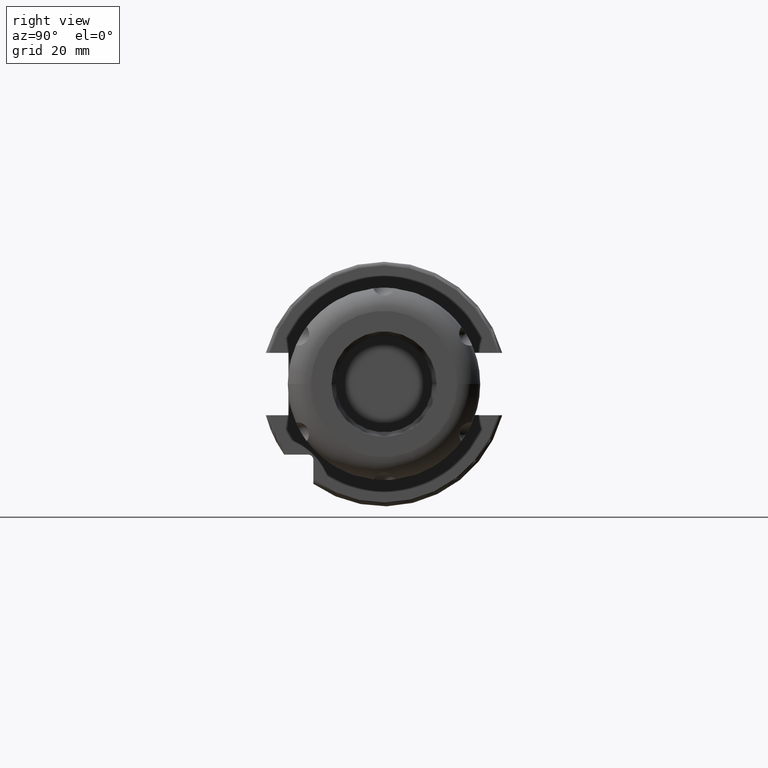
[diagram: clean part render]
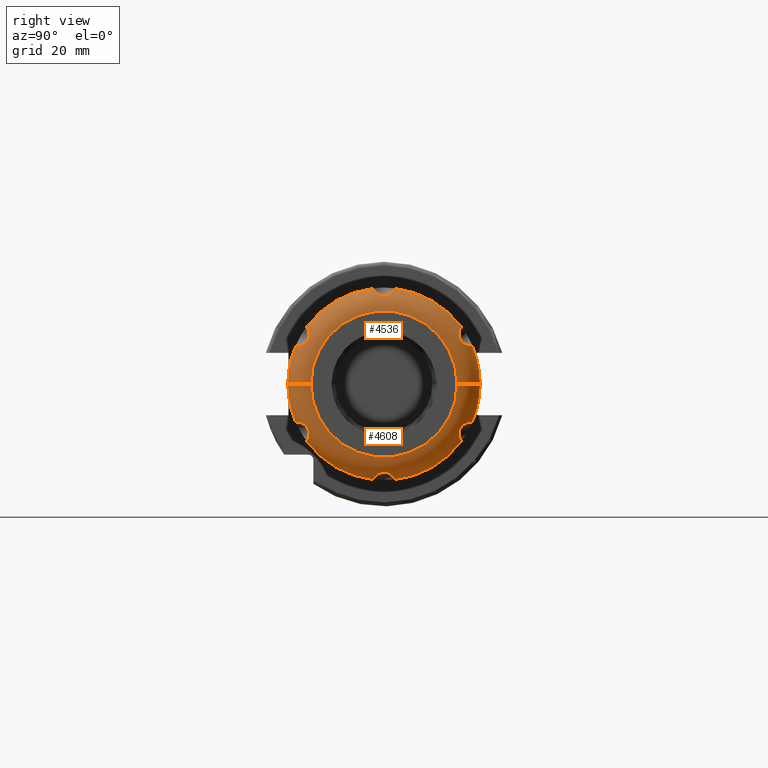
[diagram: same view with one multi-face feature highlighted, each face labeled with its STEP entity id]
A machine part, right view. The highlighted faces form ONE feature: a constant-radius fillet chain: 2 tangent blend faces with common blend radius 6 mm. The faces share edges in the B-rep.
Their STEP definitions:
[1] entity #4608 (Torus):
#3358=CARTESIAN_POINT('',(1.65E1,1.9E1,0.E0));
#3359=DIRECTION('',(0.E0,0.E0,1.E0));
#3360=DIRECTION('',(1.E0,0.E0,0.E0));
#3361=AXIS2_PLACEMENT_3D('',#3358,#3359,#3360);
#3368=CARTESIAN_POINT('',(1.65E1,-1.9E1,0.E0));
#3369=DIRECTION('',(0.E0,0.E0,-1.E0));
#3370=DIRECTION('',(1.E0,0.E0,0.E0));
#3371=AXIS2_PLACEMENT_3D('',#3368,#3369,#3370);
#3465=CARTESIAN_POINT('',(2.25E1,0.E0,0.E0));
#3466=DIRECTION('',(-1.E0,0.E0,0.E0));
#3467=DIRECTION('',(0.E0,1.E0,0.E0));
#3468=AXIS2_PLACEMENT_3D('',#3465,#3466,#3467);
#3470=CARTESIAN_POINT('',(1.65E1,-2.290985507097E1,-1.000692463383E1));
#3471=CARTESIAN_POINT('',(1.694723275951E1,-2.290985507097E1,
-1.000692463383E1));
#3472=CARTESIAN_POINT('',(1.777273686532E1,-2.280971519412E1,
-9.990413347569E0));
#3473=CARTESIAN_POINT('',(1.880906674721E1,-2.245689672418E1,
-9.964959800532E0));
#3474=CARTESIAN_POINT('',(1.963305973257E1,-2.197150264562E1,
-1.000123426491E1));
#3475=CARTESIAN_POINT('',(2.024791780451E1,-2.142093508083E1,
-1.014493191317E1));
#3476=CARTESIAN_POINT('',(2.066023413901E1,-2.088267487226E1,
-1.040837966879E1));
#3477=CARTESIAN_POINT('',(2.090398272661E1,-2.041467150765E1,
-1.076644635425E1));
#3478=CARTESIAN_POINT('',(2.102168107365E1,-2.001959095990E1,
-1.121448387238E1));
#3479=CARTESIAN_POINT('',(2.102095170479E1,-1.971884963615E1,
-1.173687630992E1));
#3480=CARTESIAN_POINT('',(2.090187643971E1,-1.952968219076E1,
-1.230343942106E1));
#3481=CARTESIAN_POINT('',(2.065580889336E1,-1.945504186870E1,
-1.288887827158E1));
#3482=CARTESIAN_POINT('',(2.024233450265E1,-1.949742910517E1,
-1.348469612162E1));
#3483=CARTESIAN_POINT('',(1.962716159831E1,-1.964864834024E1,
-1.403114251544E1));
#3484=CARTESIAN_POINT('',(1.880413136422E1,-1.985945595620E1,
-1.446749790272E1));
#3485=CARTESIAN_POINT('',(1.776997637896E1,-2.005709122247E1,
-1.475891696091E1));
#3486=CARTESIAN_POINT('',(1.694623232374E1,-2.012117848214E1,
-1.483705417156E1));
#3487=CARTESIAN_POINT('',(1.65E1,-2.012117848214E1,-1.483705417156E1));
#3497=CARTESIAN_POINT('',(1.65E1,0.E0,0.E0));
#3498=DIRECTION('',(-1.E0,0.E0,0.E0));
#3499=DIRECTION('',(0.E0,-1.115470635532E-1,-9.937591522158E-1));
#3500=AXIS2_PLACEMENT_3D('',#3497,#3498,#3499);
#3510=CARTESIAN_POINT('',(1.65E1,0.E0,0.E0));
#3511=DIRECTION('',(-1.E0,0.E0,0.E0));
#3512=DIRECTION('',(0.E0,8.048471392856E-1,-5.934821668625E-1));
#3513=AXIS2_PLACEMENT_3D('',#3510,#3511,#3512);
#3523=CARTESIAN_POINT('',(1.65E1,0.E0,0.E0));
#3524=DIRECTION('',(-1.E0,0.E0,0.E0));
#3525=DIRECTION('',(0.E0,1.E0,0.E0));
#3526=AXIS2_PLACEMENT_3D('',#3523,#3524,#3525);
#3528=CARTESIAN_POINT('',(1.65E1,0.E0,0.E0));
#3529=DIRECTION('',(-1.E0,0.E0,0.E0));
#3530=DIRECTION('',(0.E0,-9.163942028388E-1,-4.002769853533E-1));
#3531=AXIS2_PLACEMENT_3D('',#3528,#3529,#3530);
#3560=CARTESIAN_POINT('',(1.65E1,-2.788676588829E0,-2.484397880539E1));
#3561=CARTESIAN_POINT('',(1.694694754131E1,-2.788676588829E0,
-2.484397880539E1));
#3562=CARTESIAN_POINT('',(1.777198007116E1,-2.752943205589E0,
-2.474911021453E1));
#3563=CARTESIAN_POINT('',(1.880771896592E1,-2.598811539784E0,
-2.443123011097E1));
#3564=CARTESIAN_POINT('',(1.963176734723E1,-2.325018135834E0,
-2.402923896364E1));
#3565=CARTESIAN_POINT('',(2.024696892663E1,-1.925560273791E0,
-2.362424975475E1));
#3566=CARTESIAN_POINT('',(2.065976563048E1,-1.428231673506E0,
-2.328953614277E1));
#3567=CARTESIAN_POINT('',(2.090378550494E1,-8.839996782707E-1,
-2.306304098867E1));
#3568=CARTESIAN_POINT('',(2.102164431311E1,-2.982640542416E-1,
-2.294475429858E1));
#3569=CARTESIAN_POINT('',(2.102100109149E1,3.046780383890E-1,
-2.294541333181E1));
#3570=CARTESIAN_POINT('',(2.090191025403E1,8.901354013608E-1,
-2.306488534693E1));
#3571=CARTESIAN_POINT('',(2.065592748228E1,1.434427559113E0,-2.329290182320E1));
#3572=CARTESIAN_POINT('',(2.024207145380E1,1.929692523839E0,-2.362783432082E1));
#3573=CARTESIAN_POINT('',(1.962632472305E1,2.327415036802E0,-2.403230056670E1));
#3574=CARTESIAN_POINT('',(1.880301628675E1,2.599720971572E0,-2.443296598778E1));
#3575=CARTESIAN_POINT('',(1.776936990180E1,2.753079224328E0,-2.474949496109E1));
#3576=CARTESIAN_POINT('',(1.694599708003E1,2.788676588829E0,-2.484397880539E1));
#3577=CARTESIAN_POINT('',(1.65E1,2.788676588829E0,-2.484397880539E1));
#3606=CARTESIAN_POINT('',(1.65E1,2.012117848214E1,-1.483705417156E1));
#3607=CARTESIAN_POINT('',(1.694708856491E1,2.012117848214E1,-1.483705417156E1));
#3608=CARTESIAN_POINT('',(1.777236287507E1,2.005685110167E1,-1.475863577517E1));
#3609=CARTESIAN_POINT('',(1.880853425709E1,1.985847743238E1,-1.446595958018E1));
#3610=CARTESIAN_POINT('',(1.963251451616E1,1.964722137305E1,-1.402762578400E1));
#3611=CARTESIAN_POINT('',(2.024747710348E1,1.949632115603E1,-1.347912009229E1));
#3612=CARTESIAN_POINT('',(2.066003894181E1,1.945524023858E1,-1.288111988149E1));
#3613=CARTESIAN_POINT('',(2.090387423337E1,1.953126705805E1,-1.229675839468E1));
#3614=CARTESIAN_POINT('',(2.102165433062E1,1.972169964466E1,-1.173050220689E1));
#3615=CARTESIAN_POINT('',(2.102098683850E1,2.002367806744E1,-1.120882785331E1));
#3616=CARTESIAN_POINT('',(2.090193711942E1,2.041975743808E1,-1.076165852656E1));
#3617=CARTESIAN_POINT('',(2.065607652062E1,2.088920438665E1,-1.040436975402E1));
#3618=CARTESIAN_POINT('',(2.024242898343E1,2.142675562221E1,-1.014290308878E1));
#3619=CARTESIAN_POINT('',(1.962683553388E1,2.197591842393E1,-1.000060537989E1));
#3620=CARTESIAN_POINT('',(1.880356314615E1,2.245919882776E1,-9.965050715289E0));
#3621=CARTESIAN_POINT('',(1.776963548014E1,2.281019487193E1,-9.990502811027E0));
#3622=CARTESIAN_POINT('',(1.694609518650E1,2.290985507097E1,-1.000692463383E1));
#3623=CARTESIAN_POINT('',(1.65E1,2.290985507097E1,-1.000692463383E1));
#4247=CARTESIAN_POINT('',(2.25E1,1.9E1,0.E0));
#4248=CARTESIAN_POINT('',(1.65E1,2.5E1,0.E0));
#4249=VERTEX_POINT('',#4247);
#4250=VERTEX_POINT('',#4248);
#4257=CARTESIAN_POINT('',(2.25E1,-1.9E1,0.E0));
#4258=CARTESIAN_POINT('',(1.65E1,-2.5E1,0.E0));
#4259=VERTEX_POINT('',#4257);
#4260=VERTEX_POINT('',#4258);
#4261=CARTESIAN_POINT('',(1.65E1,-2.788676588829E0,-2.484397880539E1));
#4263=VERTEX_POINT('',#4261);
#4265=CARTESIAN_POINT('',(1.65E1,2.788676588829E0,-2.484397880539E1));
#4267=VERTEX_POINT('',#4265);
#4269=CARTESIAN_POINT('',(1.65E1,2.012117848214E1,-1.483705417156E1));
#4271=VERTEX_POINT('',#4269);
#4273=CARTESIAN_POINT('',(1.65E1,2.290985507097E1,-1.000692463383E1));
#4275=VERTEX_POINT('',#4273);
#4301=CARTESIAN_POINT('',(1.65E1,-2.290985507097E1,-1.000692463383E1));
#4303=VERTEX_POINT('',#4301);
#4305=CARTESIAN_POINT('',(1.65E1,-2.012117848214E1,-1.483705417156E1));
#4307=VERTEX_POINT('',#4305);
#4583=CARTESIAN_POINT('',(1.65E1,0.E0,0.E0));
#4584=DIRECTION('',(-1.E0,0.E0,0.E0));
#4585=DIRECTION('',(0.E0,1.E0,0.E0));
#4586=AXIS2_PLACEMENT_3D('',#4583,#4584,#4585);
#4587=TOROIDAL_SURFACE('',#4586,1.9E1,6.E0);
#4589=ORIENTED_EDGE('',*,*,#4588,.F.);
#4591=ORIENTED_EDGE('',*,*,#4590,.T.);
#4592=ORIENTED_EDGE('',*,*,#4531,.F.);
#4594=ORIENTED_EDGE('',*,*,#4593,.F.);
#4595=ORIENTED_EDGE('',*,*,#4527,.T.);
#4597=ORIENTED_EDGE('',*,*,#4596,.T.);
#4599=ORIENTED_EDGE('',*,*,#4598,.F.);
#4601=ORIENTED_EDGE('',*,*,#4600,.T.);
#4603=ORIENTED_EDGE('',*,*,#4602,.F.);
#4605=ORIENTED_EDGE('',*,*,#4604,.T.);
#4606=EDGE_LOOP('',(#4589,#4591,#4592,#4594,#4595,#4597,#4599,#4601,#4603,
#4605));
#4607=FACE_OUTER_BOUND('',#4606,.F.);
#4608=ADVANCED_FACE('',(#4607),#4587,.T.);
#3362=CIRCLE('',#3361,6.E0);
#3372=CIRCLE('',#3371,6.E0);
#3469=CIRCLE('',#3468,1.9E1);
#3488=B_SPLINE_CURVE_WITH_KNOTS('',3,(#3470,#3471,#3472,#3473,#3474,#3475,#3476,
#3477,#3478,#3479,#3480,#3481,#3482,#3483,#3484,#3485,#3486,#3487),
.UNSPECIFIED.,.F.,.F.,(4,1,1,1,1,1,1,1,1,1,1,1,1,1,1,4),(0.E0,6.666666666667E-2,
1.333333333333E-1,2.E-1,2.666666666667E-1,3.333333333333E-1,4.E-1,
4.666666666667E-1,5.333333333333E-1,6.E-1,6.666666666667E-1,7.333333333333E-1,
8.E-1,8.666666666667E-1,9.333333333333E-1,1.E0),.UNSPECIFIED.);
#3501=CIRCLE('',#3500,2.5E1);
#3514=CIRCLE('',#3513,2.5E1);
#3527=CIRCLE('',#3526,2.5E1);
#3532=CIRCLE('',#3531,2.5E1);
#3578=B_SPLINE_CURVE_WITH_KNOTS('',3,(#3560,#3561,#3562,#3563,#3564,#3565,#3566,
#3567,#3568,#3569,#3570,#3571,#3572,#3573,#3574,#3575,#3576,#3577),
.UNSPECIFIED.,.F.,.F.,(4,1,1,1,1,1,1,1,1,1,1,1,1,1,1,4),(0.E0,6.666666666667E-2,
1.333333333333E-1,2.E-1,2.666666666667E-1,3.333333333333E-1,4.E-1,
4.666666666667E-1,5.333333333333E-1,6.E-1,6.666666666667E-1,7.333333333333E-1,
8.E-1,8.666666666667E-1,9.333333333333E-1,1.E0),.UNSPECIFIED.);
#3624=B_SPLINE_CURVE_WITH_KNOTS('',3,(#3606,#3607,#3608,#3609,#3610,#3611,#3612,
#3613,#3614,#3615,#3616,#3617,#3618,#3619,#3620,#3621,#3622,#3623),
.UNSPECIFIED.,.F.,.F.,(4,1,1,1,1,1,1,1,1,1,1,1,1,1,1,4),(0.E0,6.666666666667E-2,
1.333333333333E-1,2.E-1,2.666666666667E-1,3.333333333333E-1,4.E-1,
4.666666666667E-1,5.333333333333E-1,6.E-1,6.666666666667E-1,7.333333333333E-1,
8.E-1,8.666666666667E-1,9.333333333333E-1,1.E0),.UNSPECIFIED.);
#4527=EDGE_CURVE('',#4249,#4250,#3362,.T.);
#4531=EDGE_CURVE('',#4259,#4260,#3372,.T.);
#4588=EDGE_CURVE('',#4303,#4307,#3488,.T.);
#4590=EDGE_CURVE('',#4303,#4260,#3532,.T.);
#4593=EDGE_CURVE('',#4249,#4259,#3469,.T.);
#4596=EDGE_CURVE('',#4250,#4275,#3527,.T.);
#4598=EDGE_CURVE('',#4271,#4275,#3624,.T.);
#4600=EDGE_CURVE('',#4271,#4267,#3514,.T.);
#4602=EDGE_CURVE('',#4263,#4267,#3578,.T.);
#4604=EDGE_CURVE('',#4263,#4307,#3501,.T.);
[2] entity #4536 (Torus):
#3295=CARTESIAN_POINT('',(1.65E1,0.E0,0.E0));
#3296=DIRECTION('',(1.E0,0.E0,0.E0));
#3297=DIRECTION('',(0.E0,-9.163942028388E-1,4.002769853533E-1));
#3298=AXIS2_PLACEMENT_3D('',#3295,#3296,#3297);
#3308=CARTESIAN_POINT('',(1.65E1,0.E0,0.E0));
#3309=DIRECTION('',(1.E0,0.E0,0.E0));
#3310=DIRECTION('',(0.E0,1.E0,0.E0));
#3311=AXIS2_PLACEMENT_3D('',#3308,#3309,#3310);
#3321=CARTESIAN_POINT('',(1.65E1,0.E0,0.E0));
#3322=DIRECTION('',(1.E0,0.E0,0.E0));
#3323=DIRECTION('',(0.E0,8.048471392856E-1,5.934821668625E-1));
#3324=AXIS2_PLACEMENT_3D('',#3321,#3322,#3323);
#3334=CARTESIAN_POINT('',(1.65E1,0.E0,0.E0));
#3335=DIRECTION('',(1.E0,0.E0,0.E0));
#3336=DIRECTION('',(0.E0,-1.115470635532E-1,9.937591522158E-1));
#3337=AXIS2_PLACEMENT_3D('',#3334,#3335,#3336);
#3339=CARTESIAN_POINT('',(1.65E1,-2.012117848214E1,1.483705417156E1));
#3340=CARTESIAN_POINT('',(1.694720373027E1,-2.012117848214E1,1.483705417156E1));
#3341=CARTESIAN_POINT('',(1.777266753503E1,-2.005682040911E1,1.475860131025E1));
#3342=CARTESIAN_POINT('',(1.880909079501E1,-1.985835199326E1,1.446575721201E1));
#3343=CARTESIAN_POINT('',(1.963302422172E1,-1.964708392773E1,1.402727431065E1));
#3344=CARTESIAN_POINT('',(2.024782154650E1,-1.949625628860E1,1.347871288199E1));
#3345=CARTESIAN_POINT('',(2.066017174164E1,-1.945525930865E1,1.288084481345E1));
#3346=CARTESIAN_POINT('',(2.090390509298E1,-1.953130570434E1,1.229662971326E1));
#3347=CARTESIAN_POINT('',(2.102164448056E1,-1.972170667578E1,1.173050989439E1));
#3348=CARTESIAN_POINT('',(2.102099245026E1,-2.002359896792E1,1.120895302290E1));
#3349=CARTESIAN_POINT('',(2.090201171385E1,-2.041955789837E1,1.076185649719E1));
#3350=CARTESIAN_POINT('',(2.065629645088E1,-2.088884100809E1,1.040460485221E1));
#3351=CARTESIAN_POINT('',(2.024287754272E1,-2.142626397909E1,1.014308533842E1));
#3352=CARTESIAN_POINT('',(1.962744243890E1,-2.197547901245E1,1.000067028405E1));
#3353=CARTESIAN_POINT('',(1.880419347336E1,-2.245893266711E1,9.965041592392E0));
#3354=CARTESIAN_POINT('',(1.776995325185E1,-2.281015024283E1,9.990493157919E0));
#3355=CARTESIAN_POINT('',(1.694621273544E1,-2.290985507097E1,1.000692463383E1));
#3356=CARTESIAN_POINT('',(1.65E1,-2.290985507097E1,1.000692463383E1));
#3358=CARTESIAN_POINT('',(1.65E1,1.9E1,0.E0));
#3359=DIRECTION('',(0.E0,0.E0,1.E0));
#3360=DIRECTION('',(1.E0,0.E0,0.E0));
#3361=AXIS2_PLACEMENT_3D('',#3358,#3359,#3360);
#3363=CARTESIAN_POINT('',(2.25E1,0.E0,0.E0));
#3364=DIRECTION('',(1.E0,0.E0,0.E0));
#3365=DIRECTION('',(0.E0,1.E0,0.E0));
#3366=AXIS2_PLACEMENT_3D('',#3363,#3364,#3365);
#3368=CARTESIAN_POINT('',(1.65E1,-1.9E1,0.E0));
#3369=DIRECTION('',(0.E0,0.E0,-1.E0));
#3370=DIRECTION('',(1.E0,0.E0,0.E0));
#3371=AXIS2_PLACEMENT_3D('',#3368,#3369,#3370);
#3373=CARTESIAN_POINT('',(1.65E1,2.788676588829E0,2.484397880539E1));
#3374=CARTESIAN_POINT('',(1.694706257007E1,2.788676588829E0,2.484397880539E1));
#3375=CARTESIAN_POINT('',(1.777228444612E1,2.752928704125E0,2.474906643897E1));
#3376=CARTESIAN_POINT('',(1.880827481800E1,2.598699242378E0,2.443102066380E1));
#3377=CARTESIAN_POINT('',(1.963227743652E1,2.324782556568E0,2.402894412950E1));
#3378=CARTESIAN_POINT('',(2.024731428844E1,1.925239554784E0,2.362398936830E1));
#3379=CARTESIAN_POINT('',(2.065989941214E1,1.427982484067E0,2.328941427700E1));
#3380=CARTESIAN_POINT('',(2.090381678624E1,8.838675461664E-1,2.306300969865E1));
#3381=CARTESIAN_POINT('',(2.102163461927E1,2.982656604448E-1,2.294476407209E1));
#3382=CARTESIAN_POINT('',(2.102100654642E1,-3.045316302245E-1,
2.294540757610E1));
#3383=CARTESIAN_POINT('',(2.090198438464E1,-8.898656739259E-1,
2.306481197708E1));
#3384=CARTESIAN_POINT('',(2.065614663489E1,-1.434043662309E0,2.329270537285E1));
#3385=CARTESIAN_POINT('',(2.024251867477E1,-1.929290235210E0,2.362750071037E1));
#3386=CARTESIAN_POINT('',(1.962692984992E1,-2.327140057901E0,2.403195356973E1));
#3387=CARTESIAN_POINT('',(1.880364472632E1,-2.599596225315E0,2.443273169938E1));
#3388=CARTESIAN_POINT('',(1.776968653786E1,-2.753065328423E0,2.474945166371E1));
#3389=CARTESIAN_POINT('',(1.694611419548E1,-2.788676588829E0,2.484397880539E1));
#3390=CARTESIAN_POINT('',(1.65E1,-2.788676588829E0,2.484397880539E1));
#3419=CARTESIAN_POINT('',(1.65E1,2.290985507097E1,1.000692463383E1));
#3420=CARTESIAN_POINT('',(1.694711635440E1,2.290985507097E1,1.000692463383E1));
#3421=CARTESIAN_POINT('',(1.777242884702E1,2.280976096644E1,9.990422790624E0));
#3422=CARTESIAN_POINT('',(1.880850515959E1,2.245713680721E1,9.964967335215E0));
#3423=CARTESIAN_POINT('',(1.963254350016E1,2.197188030101E1,1.000117694965E1));
#3424=CARTESIAN_POINT('',(2.024756704196E1,2.142132687855E1,1.014478213800E1));
#3425=CARTESIAN_POINT('',(2.066009639963E1,2.088291124960E1,1.040822093993E1));
#3426=CARTESIAN_POINT('',(2.090394881966E1,2.041477096620E1,1.076634178110E1));
#3427=CARTESIAN_POINT('',(2.102168972468E1,2.001958751800E1,1.121447243020E1));
#3428=CARTESIAN_POINT('',(2.102094729980E1,1.971878602381E1,1.173699585960E1));
#3429=CARTESIAN_POINT('',(2.090180561230E1,1.952961370210E1,1.230369823144E1));
#3430=CARTESIAN_POINT('',(2.065559758751E1,1.945502044943E1,1.288929451673E1));
#3431=CARTESIAN_POINT('',(2.024189542934E1,1.949751504001E1,1.348520271026E1));
#3432=CARTESIAN_POINT('',(1.962656395641E1,1.964880936638E1,1.403154943432E1));
#3433=CARTESIAN_POINT('',(1.880350773528E1,1.985959547964E1,1.446772162208E1));
#3434=CARTESIAN_POINT('',(1.776966105714E1,2.005712170743E1,1.475895057900E1));
#3435=CARTESIAN_POINT('',(1.694611552512E1,2.012117848214E1,1.483705417156E1));
#3436=CARTESIAN_POINT('',(1.65E1,2.012117848214E1,1.483705417156E1));
#4247=CARTESIAN_POINT('',(2.25E1,1.9E1,0.E0));
#4248=CARTESIAN_POINT('',(1.65E1,2.5E1,0.E0));
#4249=VERTEX_POINT('',#4247);
#4250=VERTEX_POINT('',#4248);
#4257=CARTESIAN_POINT('',(2.25E1,-1.9E1,0.E0));
#4258=CARTESIAN_POINT('',(1.65E1,-2.5E1,0.E0));
#4259=VERTEX_POINT('',#4257);
#4260=VERTEX_POINT('',#4258);
#4277=CARTESIAN_POINT('',(1.65E1,2.290985507097E1,1.000692463383E1));
#4279=VERTEX_POINT('',#4277);
#4281=CARTESIAN_POINT('',(1.65E1,2.012117848214E1,1.483705417156E1));
#4283=VERTEX_POINT('',#4281);
#4285=CARTESIAN_POINT('',(1.65E1,2.788676588829E0,2.484397880539E1));
#4287=VERTEX_POINT('',#4285);
#4289=CARTESIAN_POINT('',(1.65E1,-2.788676588829E0,2.484397880539E1));
#4291=VERTEX_POINT('',#4289);
#4293=CARTESIAN_POINT('',(1.65E1,-2.012117848214E1,1.483705417156E1));
#4295=VERTEX_POINT('',#4293);
#4297=CARTESIAN_POINT('',(1.65E1,-2.290985507097E1,1.000692463383E1));
#4299=VERTEX_POINT('',#4297);
#4514=CARTESIAN_POINT('',(1.65E1,0.E0,0.E0));
#4515=DIRECTION('',(-1.E0,0.E0,0.E0));
#4516=DIRECTION('',(0.E0,1.E0,0.E0));
#4517=AXIS2_PLACEMENT_3D('',#4514,#4515,#4516);
#4518=TOROIDAL_SURFACE('',#4517,1.9E1,6.E0);
#4519=ORIENTED_EDGE('',*,*,#4505,.F.);
#4520=ORIENTED_EDGE('',*,*,#4495,.F.);
#4522=ORIENTED_EDGE('',*,*,#4521,.F.);
#4523=ORIENTED_EDGE('',*,*,#4487,.F.);
#4525=ORIENTED_EDGE('',*,*,#4524,.F.);
#4526=ORIENTED_EDGE('',*,*,#4479,.F.);
#4528=ORIENTED_EDGE('',*,*,#4527,.F.);
#4530=ORIENTED_EDGE('',*,*,#4529,.T.);
#4532=ORIENTED_EDGE('',*,*,#4531,.T.);
#4533=ORIENTED_EDGE('',*,*,#4472,.F.);
#4534=EDGE_LOOP('',(#4519,#4520,#4522,#4523,#4525,#4526,#4528,#4530,#4532,
#4533));
#4535=FACE_OUTER_BOUND('',#4534,.F.);
#4536=ADVANCED_FACE('',(#4535),#4518,.T.);
#3299=CIRCLE('',#3298,2.5E1);
#3312=CIRCLE('',#3311,2.5E1);
#3325=CIRCLE('',#3324,2.5E1);
#3338=CIRCLE('',#3337,2.5E1);
#3357=B_SPLINE_CURVE_WITH_KNOTS('',3,(#3339,#3340,#3341,#3342,#3343,#3344,#3345,
#3346,#3347,#3348,#3349,#3350,#3351,#3352,#3353,#3354,#3355,#3356),
.UNSPECIFIED.,.F.,.F.,(4,1,1,1,1,1,1,1,1,1,1,1,1,1,1,4),(0.E0,6.666666666667E-2,
1.333333333333E-1,2.E-1,2.666666666667E-1,3.333333333333E-1,4.E-1,
4.666666666667E-1,5.333333333333E-1,6.E-1,6.666666666667E-1,7.333333333333E-1,
8.E-1,8.666666666667E-1,9.333333333333E-1,1.E0),.UNSPECIFIED.);
#3362=CIRCLE('',#3361,6.E0);
#3367=CIRCLE('',#3366,1.9E1);
#3372=CIRCLE('',#3371,6.E0);
#3391=B_SPLINE_CURVE_WITH_KNOTS('',3,(#3373,#3374,#3375,#3376,#3377,#3378,#3379,
#3380,#3381,#3382,#3383,#3384,#3385,#3386,#3387,#3388,#3389,#3390),
.UNSPECIFIED.,.F.,.F.,(4,1,1,1,1,1,1,1,1,1,1,1,1,1,1,4),(0.E0,6.666666666667E-2,
1.333333333333E-1,2.E-1,2.666666666667E-1,3.333333333333E-1,4.E-1,
4.666666666667E-1,5.333333333333E-1,6.E-1,6.666666666667E-1,7.333333333333E-1,
8.E-1,8.666666666667E-1,9.333333333333E-1,1.E0),.UNSPECIFIED.);
#3437=B_SPLINE_CURVE_WITH_KNOTS('',3,(#3419,#3420,#3421,#3422,#3423,#3424,#3425,
#3426,#3427,#3428,#3429,#3430,#3431,#3432,#3433,#3434,#3435,#3436),
.UNSPECIFIED.,.F.,.F.,(4,1,1,1,1,1,1,1,1,1,1,1,1,1,1,4),(0.E0,6.666666666667E-2,
1.333333333333E-1,2.E-1,2.666666666667E-1,3.333333333333E-1,4.E-1,
4.666666666667E-1,5.333333333333E-1,6.E-1,6.666666666667E-1,7.333333333333E-1,
8.E-1,8.666666666667E-1,9.333333333333E-1,1.E0),.UNSPECIFIED.);
#4472=EDGE_CURVE('',#4299,#4260,#3299,.T.);
#4479=EDGE_CURVE('',#4250,#4279,#3312,.T.);
#4487=EDGE_CURVE('',#4283,#4287,#3325,.T.);
#4495=EDGE_CURVE('',#4291,#4295,#3338,.T.);
#4505=EDGE_CURVE('',#4295,#4299,#3357,.T.);
#4521=EDGE_CURVE('',#4287,#4291,#3391,.T.);
#4524=EDGE_CURVE('',#4279,#4283,#3437,.T.);
#4527=EDGE_CURVE('',#4249,#4250,#3362,.T.);
#4529=EDGE_CURVE('',#4249,#4259,#3367,.T.);
#4531=EDGE_CURVE('',#4259,#4260,#3372,.T.);